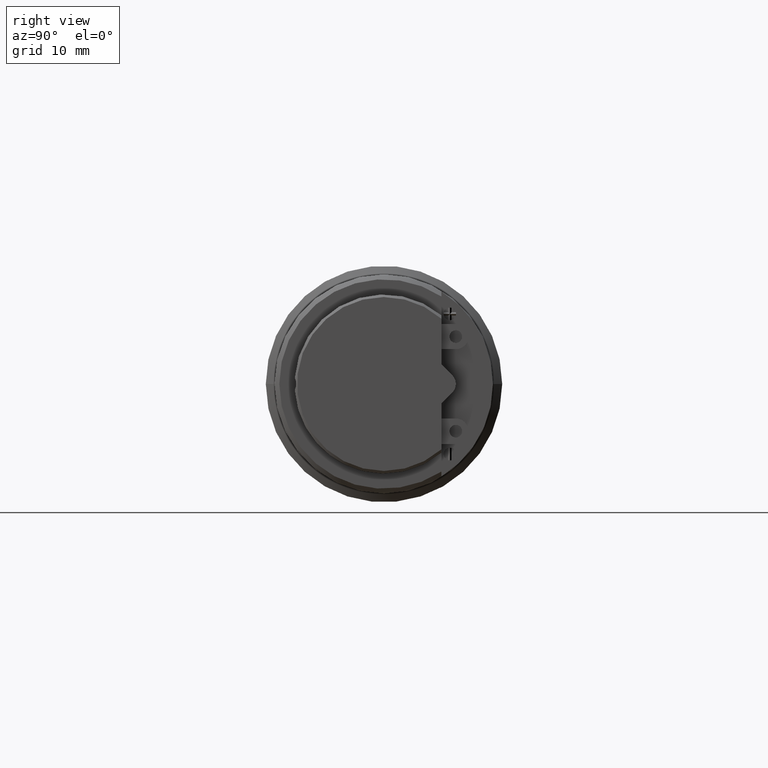
[diagram: clean part render]
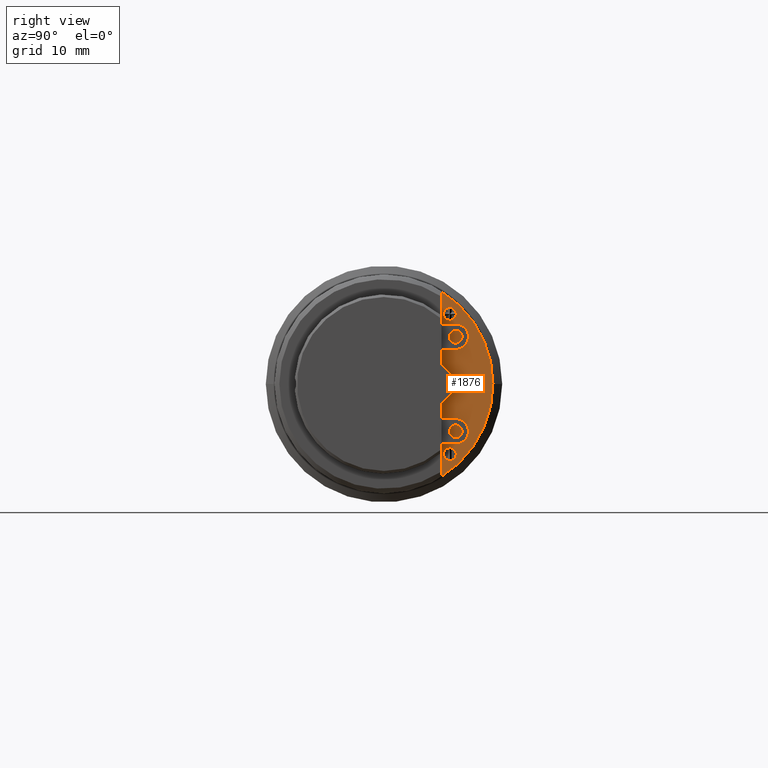
[diagram: same view with one face highlighted and labeled with its STEP entity id]
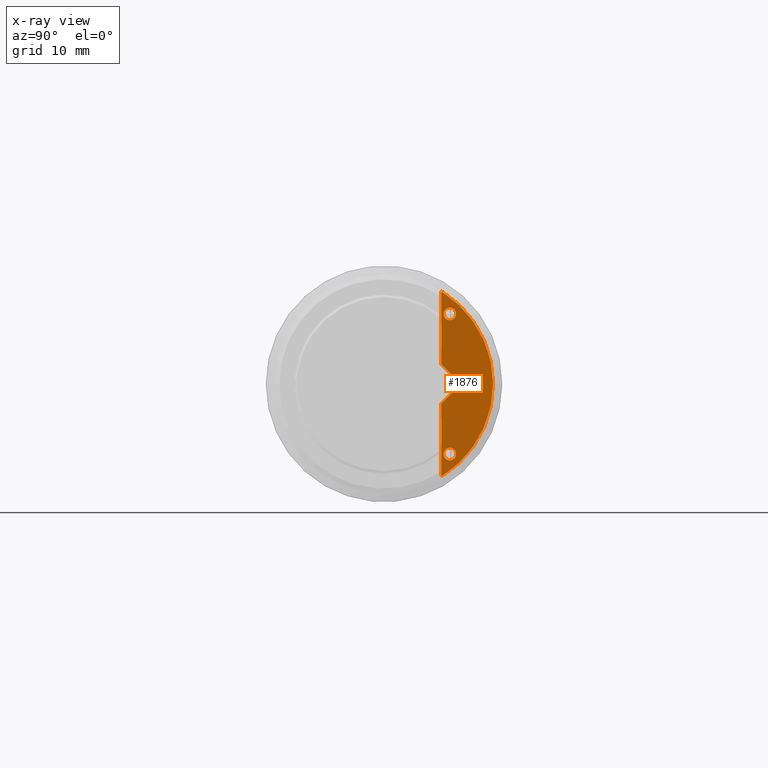
[diagram: x-ray of the same camera — body ghosted, the highlighted face saturated]
A machine part, right view. The second image highlights one B-rep face of the part: STEP entity #1876.
The next image is the same camera in x-ray: the body ghosted, the highlighted face saturated — about 0% of this face is hidden behind the body in this view.
In plain terms, the highlighted planar face has unit normal (1, 0, 0).
Its self-contained STEP definition (entity closure, byte-faithful):
#36=CARTESIAN_POINT('',(3.165E1,0.E0,0.E0));
#37=DIRECTION('',(-1.E0,0.E0,0.E0));
#38=DIRECTION('',(0.E0,1.E0,-2.000811230735E-13));
#39=AXIS2_PLACEMENT_3D('',#36,#37,#38);
#41=DIRECTION('',(0.E0,7.071067811865E-1,7.071067811866E-1));
#42=VECTOR('',#41,1.782842712475E0);
#43=CARTESIAN_POINT('',(3.165E1,6.8E0,-2.321320343560E0));
#44=LINE('',#43,#42);
#45=CARTESIAN_POINT('',(3.165E1,7.E0,0.E0));
#46=DIRECTION('',(1.E0,0.E0,0.E0));
#47=DIRECTION('',(0.E0,7.071067811865E-1,-7.071067811865E-1));
#48=AXIS2_PLACEMENT_3D('',#45,#46,#47);
#50=DIRECTION('',(0.E0,-7.071067811864E-1,7.071067811867E-1));
#51=VECTOR('',#50,1.782842712475E0);
#52=CARTESIAN_POINT('',(3.165E1,8.060660171780E0,1.060660171780E0));
#53=LINE('',#52,#51);
#54=CARTESIAN_POINT('',(3.165E1,0.E0,0.E0));
#55=DIRECTION('',(-1.E0,0.E0,0.E0));
#56=DIRECTION('',(0.E0,5.271317829459E-1,8.497835509165E-1));
#57=AXIS2_PLACEMENT_3D('',#54,#55,#56);
#59=CARTESIAN_POINT('',(3.165E1,7.8E0,8.3E0));
#60=DIRECTION('',(1.E0,0.E0,0.E0));
#61=DIRECTION('',(0.E0,0.E0,-1.E0));
#62=AXIS2_PLACEMENT_3D('',#59,#60,#61);
#64=CARTESIAN_POINT('',(3.165E1,7.8E0,8.3E0));
#65=DIRECTION('',(1.E0,0.E0,0.E0));
#66=DIRECTION('',(0.E0,0.E0,1.E0));
#67=AXIS2_PLACEMENT_3D('',#64,#65,#66);
#69=CARTESIAN_POINT('',(3.165E1,7.8E0,-8.3E0));
#70=DIRECTION('',(1.E0,0.E0,0.E0));
#71=DIRECTION('',(0.E0,0.E0,-1.E0));
#72=AXIS2_PLACEMENT_3D('',#69,#70,#71);
#74=CARTESIAN_POINT('',(3.165E1,7.8E0,-8.3E0));
#75=DIRECTION('',(1.E0,0.E0,0.E0));
#76=DIRECTION('',(0.E0,0.E0,1.E0));
#77=AXIS2_PLACEMENT_3D('',#74,#75,#76);
#108=DIRECTION('',(0.E0,-7.565187252799E-14,-1.E0));
#109=VECTOR('',#108,8.640887463261E0);
#110=CARTESIAN_POINT('',(3.165E1,6.800000000001E0,1.096220780682E1));
#111=LINE('',#110,#109);
#196=DIRECTION('',(0.E0,-1.932411961312E-14,-1.E0));
#197=VECTOR('',#196,8.640887463263E0);
#198=CARTESIAN_POINT('',(3.165E1,6.8E0,-2.321320343560E0));
#199=LINE('',#198,#197);
#1403=CARTESIAN_POINT('',(3.165E1,6.800000000002E0,1.096220780682E1));
#1404=CARTESIAN_POINT('',(3.165E1,1.29E1,-2.581934666068E-12));
#1405=VERTEX_POINT('',#1403);
#1406=VERTEX_POINT('',#1404);
#1415=CARTESIAN_POINT('',(3.165E1,6.8E0,-2.321320343560E0));
#1416=CARTESIAN_POINT('',(3.165E1,6.8E0,-1.096220780682E1));
#1417=VERTEX_POINT('',#1415);
#1418=VERTEX_POINT('',#1416);
#1419=CARTESIAN_POINT('',(3.165E1,8.060660171780E0,-1.060660171780E0));
#1420=VERTEX_POINT('',#1419);
#1421=CARTESIAN_POINT('',(3.165E1,8.060660171780E0,1.060660171780E0));
#1422=VERTEX_POINT('',#1421);
#1423=CARTESIAN_POINT('',(3.165E1,6.8E0,2.321320343560E0));
#1424=VERTEX_POINT('',#1423);
#1425=CARTESIAN_POINT('',(3.165E1,7.8E0,7.55E0));
#1426=CARTESIAN_POINT('',(3.165E1,7.8E0,9.05E0));
#1427=VERTEX_POINT('',#1425);
#1428=VERTEX_POINT('',#1426);
#1429=CARTESIAN_POINT('',(3.165E1,7.8E0,-9.05E0));
#1430=CARTESIAN_POINT('',(3.165E1,7.8E0,-7.55E0));
#1431=VERTEX_POINT('',#1429);
#1432=VERTEX_POINT('',#1430);
#1844=CARTESIAN_POINT('',(3.165E1,9.85E0,-6.785683126509E-13));
#1845=DIRECTION('',(1.E0,0.E0,0.E0));
#1846=DIRECTION('',(0.E0,0.E0,-1.E0));
#1847=AXIS2_PLACEMENT_3D('',#1844,#1845,#1846);
#1848=PLANE('',#1847);
#1850=ORIENTED_EDGE('',*,*,#1849,.T.);
#1852=ORIENTED_EDGE('',*,*,#1851,.F.);
#1854=ORIENTED_EDGE('',*,*,#1853,.T.);
#1856=ORIENTED_EDGE('',*,*,#1855,.T.);
#1858=ORIENTED_EDGE('',*,*,#1857,.T.);
#1860=ORIENTED_EDGE('',*,*,#1859,.F.);
#1861=ORIENTED_EDGE('',*,*,#1830,.T.);
#1862=EDGE_LOOP('',(#1850,#1852,#1854,#1856,#1858,#1860,#1861));
#1863=FACE_OUTER_BOUND('',#1862,.F.);
#1865=ORIENTED_EDGE('',*,*,#1864,.T.);
#1867=ORIENTED_EDGE('',*,*,#1866,.T.);
#1868=EDGE_LOOP('',(#1865,#1867));
#1869=FACE_BOUND('',#1868,.F.);
#1871=ORIENTED_EDGE('',*,*,#1870,.T.);
#1873=ORIENTED_EDGE('',*,*,#1872,.T.);
#1874=EDGE_LOOP('',(#1871,#1873));
#1875=FACE_BOUND('',#1874,.F.);
#1876=ADVANCED_FACE('',(#1863,#1869,#1875),#1848,.T.);
#40=CIRCLE('',#39,1.29E1);
#49=CIRCLE('',#48,1.5E0);
#58=CIRCLE('',#57,1.29E1);
#63=CIRCLE('',#62,7.5E-1);
#68=CIRCLE('',#67,7.5E-1);
#73=CIRCLE('',#72,7.5E-1);
#78=CIRCLE('',#77,7.5E-1);
#1830=EDGE_CURVE('',#1405,#1406,#58,.T.);
#1849=EDGE_CURVE('',#1406,#1418,#40,.T.);
#1851=EDGE_CURVE('',#1417,#1418,#199,.T.);
#1853=EDGE_CURVE('',#1417,#1420,#44,.T.);
#1855=EDGE_CURVE('',#1420,#1422,#49,.T.);
#1857=EDGE_CURVE('',#1422,#1424,#53,.T.);
#1859=EDGE_CURVE('',#1405,#1424,#111,.T.);
#1864=EDGE_CURVE('',#1427,#1428,#63,.T.);
#1866=EDGE_CURVE('',#1428,#1427,#68,.T.);
#1870=EDGE_CURVE('',#1431,#1432,#73,.T.);
#1872=EDGE_CURVE('',#1432,#1431,#78,.T.);